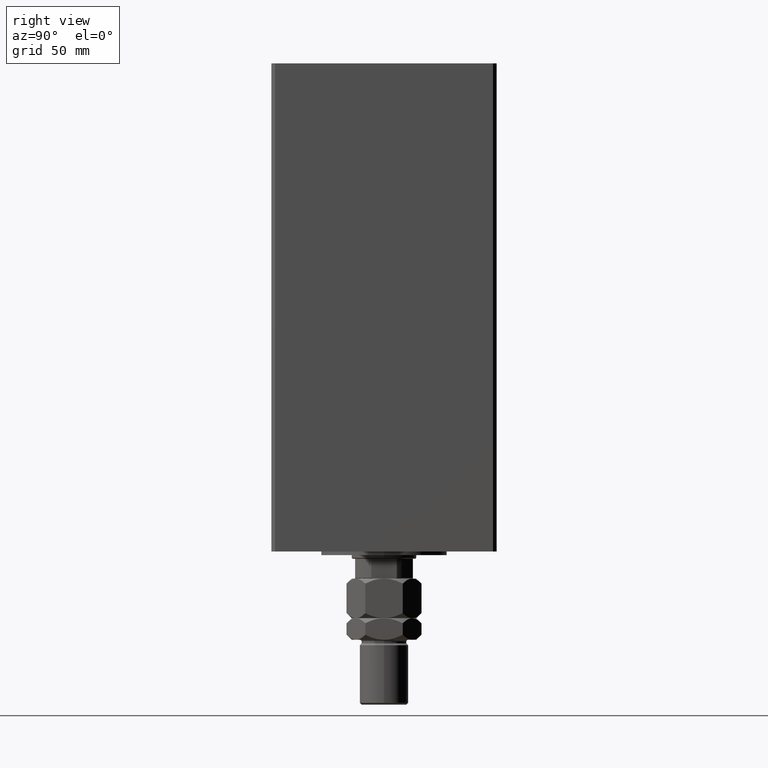
[diagram: clean part render]
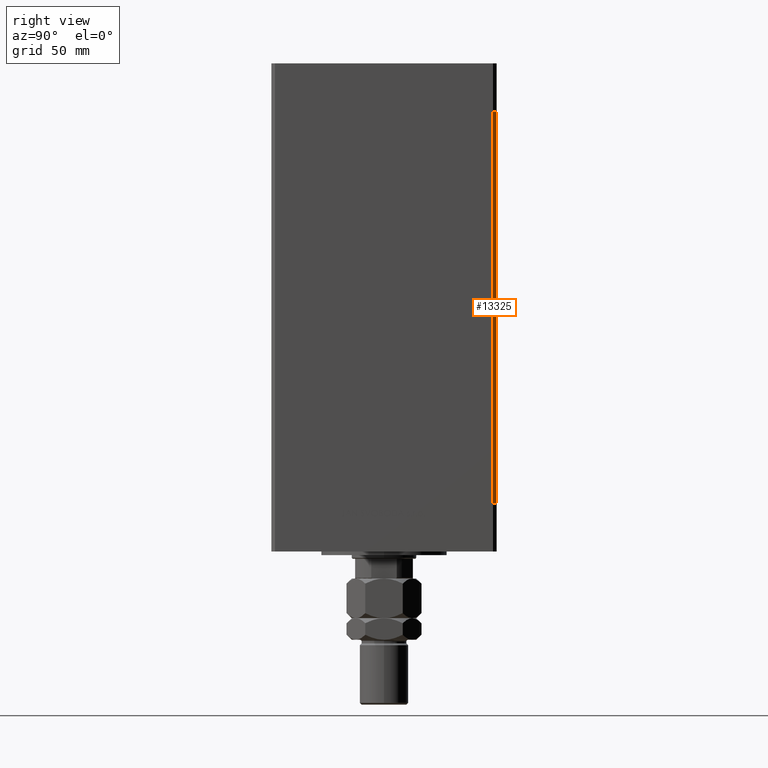
[diagram: same view with one face highlighted and labeled with its STEP entity id]
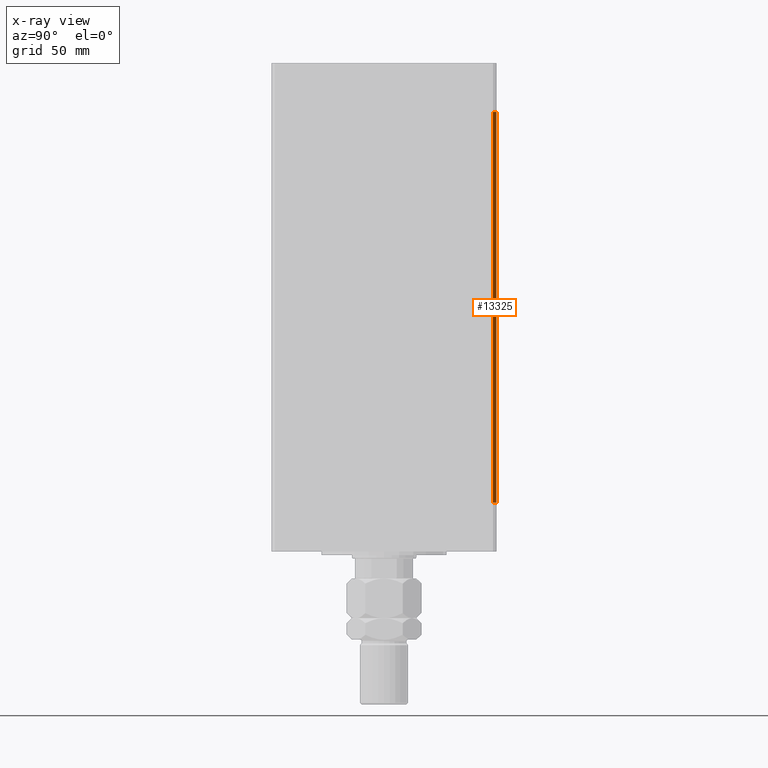
[diagram: x-ray of the same camera — body ghosted, the highlighted face saturated]
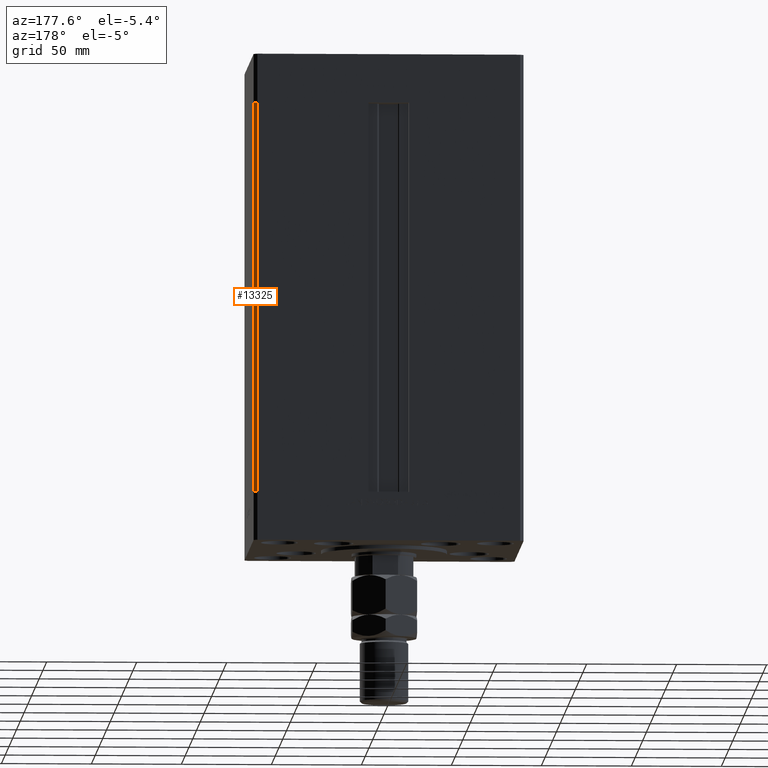
[diagram: same view with one face highlighted and labeled with its STEP entity id]
A machine part, right view. The second image highlights one B-rep face of the part: STEP entity #13325.
The next image is the same camera in x-ray: the body ghosted, the highlighted face saturated — about 0% of this face is hidden behind the body in this view.
A second angle (auxiliary view) of the same face is appended — the face is thin or edge-on in the first view.
In plain terms, the highlighted planar face has unit normal (0.7071, 0.7071, 0).
Its self-contained STEP definition (entity closure, byte-faithful):
#597 = CARTESIAN_POINT ( 'NONE',  ( 75.00000000000001421, 60.50000000000000000, 0.000000000000000000 ) ) ;
#642 = CARTESIAN_POINT ( 'NONE',  ( 73.00000000000001421, 62.50000000000000000, 217.0000000000000000 ) ) ;
#770 = CARTESIAN_POINT ( 'NONE',  ( 73.00000000000001421, 62.50000000000000000, 217.0000000000000000 ) ) ;
#937 = ORIENTED_EDGE ( 'NONE', *, *, #28444, .F. ) ;
#1503 = ORIENTED_EDGE ( 'NONE', *, *, #48715, .F. ) ;
#1535 = LINE ( 'NONE', #770, #35624 ) ;
#2556 = DIRECTION ( 'NONE',  ( 0.7071067811865474617, -0.7071067811865474617, 0.000000000000000000 ) ) ;
#3729 = LINE ( 'NONE', #23681, #41165 ) ;
#3816 = DIRECTION ( 'NONE',  ( -0.7071067811865474617, 0.7071067811865474617, 0.000000000000000000 ) ) ;
#4702 = LINE ( 'NONE', #8549, #13436 ) ;
#5053 = VERTEX_POINT ( 'NONE', #24165 ) ;
#6485 = VERTEX_POINT ( 'NONE', #642 ) ;
#8320 = EDGE_CURVE ( 'NONE', #6485, #5053, #1535, .T. ) ;
#8363 = ORIENTED_EDGE ( 'NONE', *, *, #8320, .T. ) ;
#8549 = CARTESIAN_POINT ( 'NONE',  ( 73.00000000000001421, 62.50000000000000000, 217.0000000000000000 ) ) ;
#12901 = DIRECTION ( 'NONE',  ( -0.000000000000000000, -0.000000000000000000, -1.000000000000000000 ) ) ;
#13325 = ADVANCED_FACE ( 'NONE', ( #30693 ), #30941, .T. ) ;
#13436 = VECTOR ( 'NONE', #12901, 1000.000000000000000 ) ;
#13745 = AXIS2_PLACEMENT_3D ( 'NONE', #30192, #30442, #3816 ) ;
#19187 = CARTESIAN_POINT ( 'NONE',  ( 73.00000000000001421, 62.50000000000000000, 0.000000000000000000 ) ) ;
#23681 = CARTESIAN_POINT ( 'NONE',  ( 75.00000000000001421, 60.50000000000000000, 217.0000000000000000 ) ) ;
#24114 = VERTEX_POINT ( 'NONE', #597 ) ;
#24165 = CARTESIAN_POINT ( 'NONE',  ( 75.00000000000001421, 60.50000000000000000, 217.0000000000000000 ) ) ;
#26865 = LINE ( 'NONE', #19187, #42714 ) ;
#28389 = EDGE_LOOP ( 'NONE', ( #937, #1503, #8363, #40769 ) ) ;
#28444 = EDGE_CURVE ( 'NONE', #48571, #24114, #26865, .T. ) ;
#30192 = CARTESIAN_POINT ( 'NONE',  ( 73.00000000000001421, 62.50000000000000000, 217.0000000000000000 ) ) ;
#30442 = DIRECTION ( 'NONE',  ( 0.7071067811865475727, 0.7071067811865475727, -0.000000000000000000 ) ) ;
#30541 = EDGE_CURVE ( 'NONE', #5053, #24114, #3729, .T. ) ;
#30693 = FACE_OUTER_BOUND ( 'NONE', #28389, .T. ) ;
#30941 = PLANE ( 'NONE',  #13745 ) ;
#34176 = CARTESIAN_POINT ( 'NONE',  ( 73.00000000000001421, 62.50000000000000000, 0.000000000000000000 ) ) ;
#35624 = VECTOR ( 'NONE', #40187, 1000.000000000000114 ) ;
#39298 = DIRECTION ( 'NONE',  ( -0.000000000000000000, -0.000000000000000000, -1.000000000000000000 ) ) ;
#40187 = DIRECTION ( 'NONE',  ( 0.7071067811865474617, -0.7071067811865474617, 0.000000000000000000 ) ) ;
#40769 = ORIENTED_EDGE ( 'NONE', *, *, #30541, .T. ) ;
#41165 = VECTOR ( 'NONE', #39298, 1000.000000000000000 ) ;
#42714 = VECTOR ( 'NONE', #2556, 1000.000000000000114 ) ;
#48571 = VERTEX_POINT ( 'NONE', #34176 ) ;
#48715 = EDGE_CURVE ( 'NONE', #6485, #48571, #4702, .T. ) ;